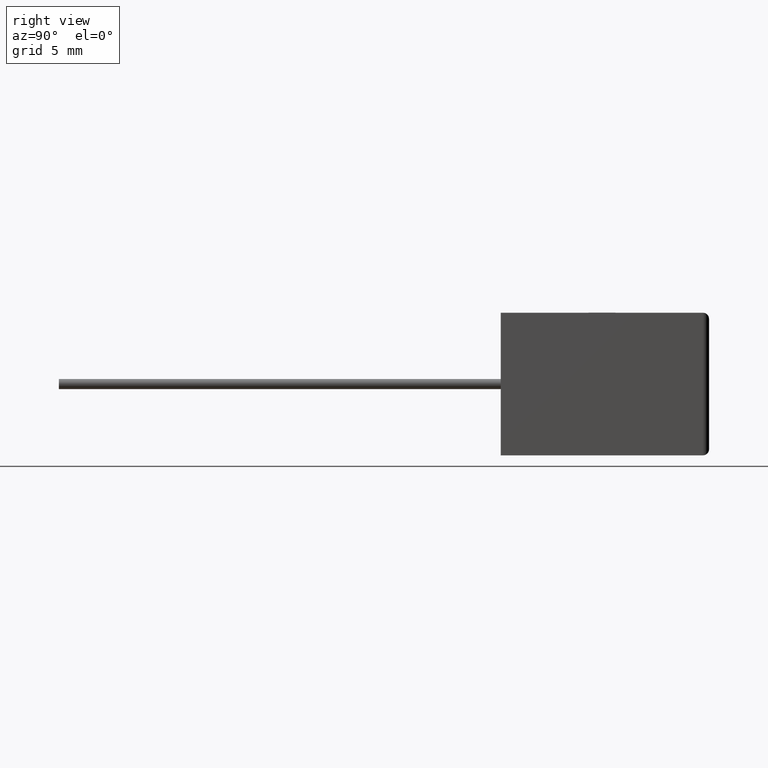
[diagram: clean part render]
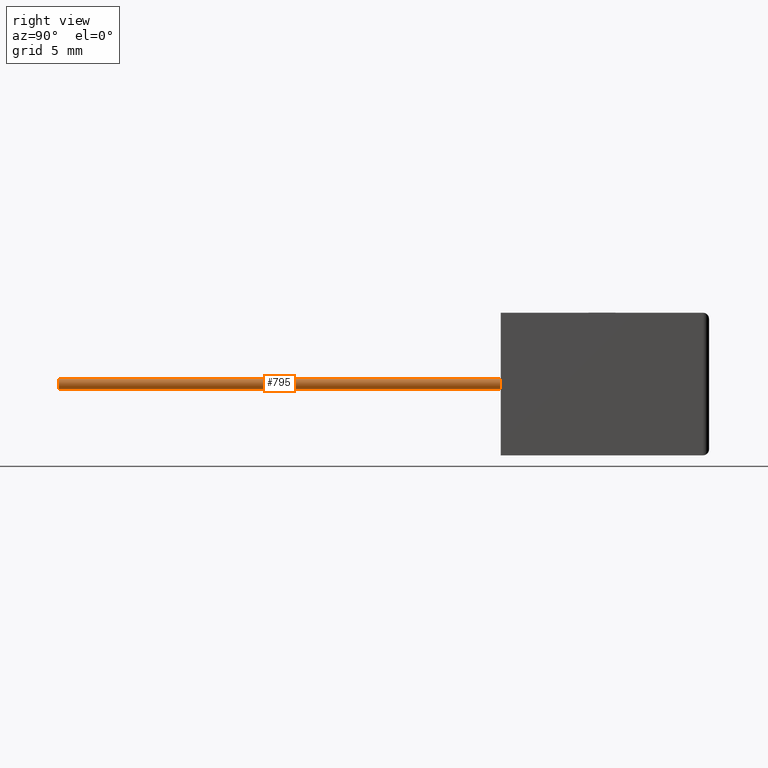
[diagram: same view with one face highlighted and labeled with its STEP entity id]
A machine part, right view. The second image highlights one B-rep face of the part: STEP entity #795.
In plain terms, the highlighted cylindrical surface (edge-blend (fillet) strip) has radius 0.4 mm, axis along (-0, 1, -0).
Its self-contained STEP definition (entity closure, byte-faithful):
#103 = EDGE_CURVE ( 'NONE', #1441, #1412, #1857, .T. ) ;
#130 = CARTESIAN_POINT ( 'NONE',  ( 22.15000000000000200, 0.0000000000000000000, 6.050000000000000700 ) ) ;
#173 = VERTEX_POINT ( 'NONE', #1619 ) ;
#187 = CARTESIAN_POINT ( 'NONE',  ( 22.15000000000000200, -35.00000000000000000, 6.050000000000000700 ) ) ;
#194 = CARTESIAN_POINT ( 'NONE',  ( 22.15000000000000200, -35.00000000000000000, 5.650000000000000400 ) ) ;
#215 = DIRECTION ( 'NONE',  ( 0.0000000000000000000, 0.0000000000000000000, -1.000000000000000000 ) ) ;
#258 = CARTESIAN_POINT ( 'NONE',  ( 22.15000000000000200, -35.00000000000000000, 6.050000000000000700 ) ) ;
#280 = DIRECTION ( 'NONE',  ( 0.0000000000000000000, 0.0000000000000000000, -1.000000000000000000 ) ) ;
#329 = DIRECTION ( 'NONE',  ( -0.0000000000000000000, 1.000000000000000000, -0.0000000000000000000 ) ) ;
#379 = ORIENTED_EDGE ( 'NONE', *, *, #103, .F. ) ;
#429 = CARTESIAN_POINT ( 'NONE',  ( 22.15000000000000200, 0.0000000000000000000, 5.650000000000000400 ) ) ;
#440 = DIRECTION ( 'NONE',  ( -0.0000000000000000000, 1.000000000000000000, -0.0000000000000000000 ) ) ;
#451 = ORIENTED_EDGE ( 'NONE', *, *, #1089, .F. ) ;
#685 = CARTESIAN_POINT ( 'NONE',  ( 22.15000000000000200, -35.00000000000000000, 5.650000000000000400 ) ) ;
#704 = CYLINDRICAL_SURFACE ( 'NONE', #2124, 0.4000000000000001900 ) ;
#777 = EDGE_LOOP ( 'NONE', ( #1777, #1866, #451, #379 ) ) ;
#782 = DIRECTION ( 'NONE',  ( -0.0000000000000000000, 1.000000000000000000, -0.0000000000000000000 ) ) ;
#795 = ADVANCED_FACE ( 'NONE', ( #1488 ), #704, .T. ) ;
#824 = CARTESIAN_POINT ( 'NONE',  ( 22.15000000000000200, -35.00000000000000000, 5.250000000000000000 ) ) ;
#1003 = CARTESIAN_POINT ( 'NONE',  ( 22.15000000000000200, 0.0000000000000000000, 5.250000000000000000 ) ) ;
#1034 = VECTOR ( 'NONE', #440, 1000.000000000000000 ) ;
#1074 = CIRCLE ( 'NONE', #2458, 0.4000000000000001900 ) ;
#1089 = EDGE_CURVE ( 'NONE', #1412, #2187, #1721, .T. ) ;
#1119 = EDGE_CURVE ( 'NONE', #1441, #173, #1074, .T. ) ;
#1372 = DIRECTION ( 'NONE',  ( -0.0000000000000000000, 1.000000000000000000, -0.0000000000000000000 ) ) ;
#1403 = DIRECTION ( 'NONE',  ( -0.0000000000000000000, 1.000000000000000000, -0.0000000000000000000 ) ) ;
#1412 = VERTEX_POINT ( 'NONE', #130 ) ;
#1441 = VERTEX_POINT ( 'NONE', #187 ) ;
#1488 = FACE_OUTER_BOUND ( 'NONE', #777, .T. ) ;
#1619 = CARTESIAN_POINT ( 'NONE',  ( 22.15000000000000200, -35.00000000000000000, 5.250000000000000000 ) ) ;
#1662 = LINE ( 'NONE', #824, #1034 ) ;
#1672 = DIRECTION ( 'NONE',  ( 0.0000000000000000000, 0.0000000000000000000, 1.000000000000000000 ) ) ;
#1721 = CIRCLE ( 'NONE', #2340, 0.4000000000000001900 ) ;
#1777 = ORIENTED_EDGE ( 'NONE', *, *, #1119, .T. ) ;
#1796 = EDGE_CURVE ( 'NONE', #173, #2187, #1662, .T. ) ;
#1857 = LINE ( 'NONE', #258, #1974 ) ;
#1866 = ORIENTED_EDGE ( 'NONE', *, *, #1796, .T. ) ;
#1974 = VECTOR ( 'NONE', #1403, 1000.000000000000000 ) ;
#2124 = AXIS2_PLACEMENT_3D ( 'NONE', #685, #329, #1672 ) ;
#2187 = VERTEX_POINT ( 'NONE', #1003 ) ;
#2340 = AXIS2_PLACEMENT_3D ( 'NONE', #429, #1372, #215 ) ;
#2458 = AXIS2_PLACEMENT_3D ( 'NONE', #194, #782, #280 ) ;